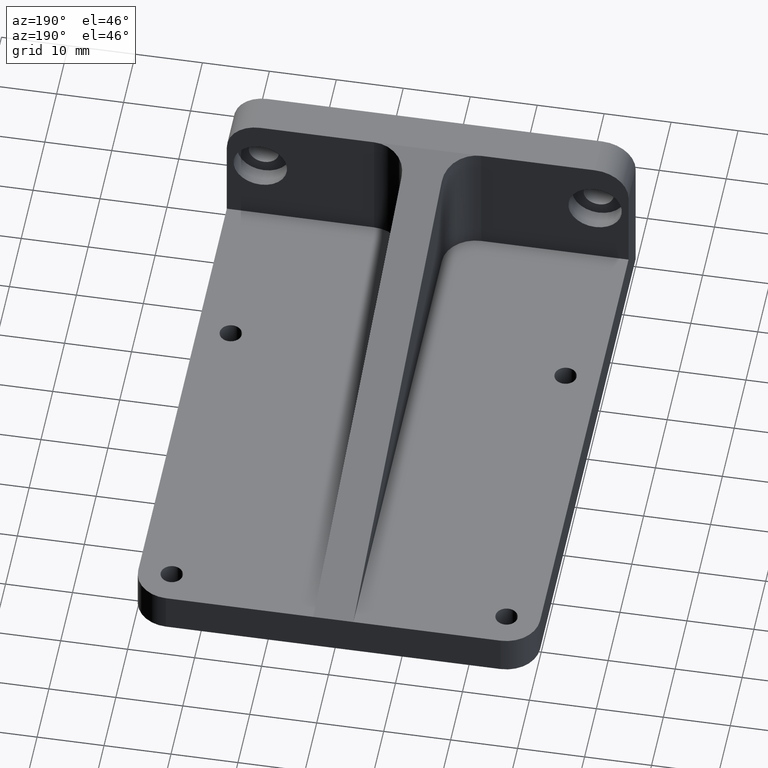
[diagram: clean part render]
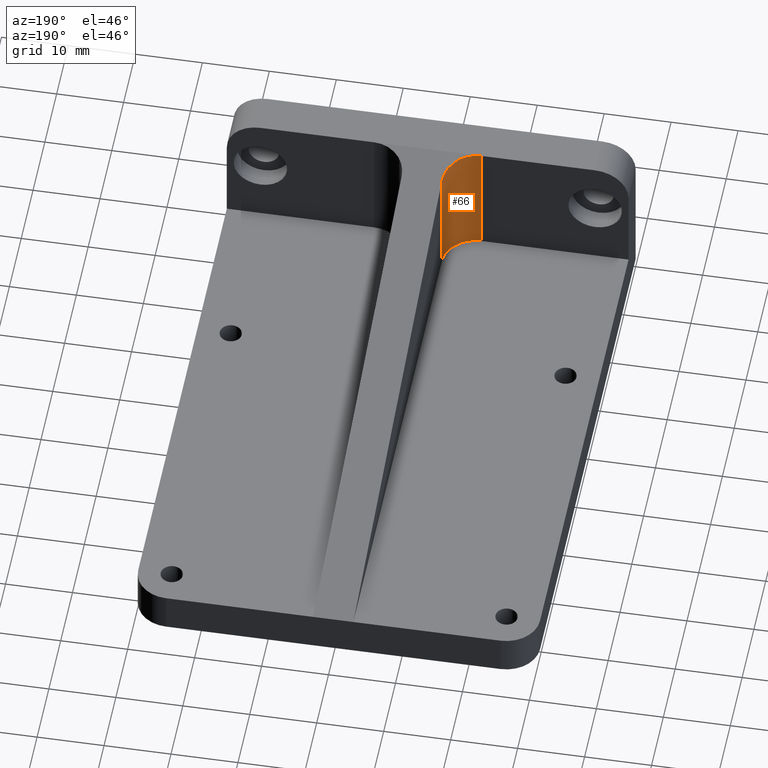
[diagram: same view with one face highlighted and labeled with its STEP entity id]
A machine part, auxiliary view. The second image highlights one B-rep face of the part: STEP entity #66.
In plain terms, the highlighted cylindrical surface (edge-blend (fillet) strip) has radius 5 mm, axis along (0, 0, -1).
Its self-contained STEP definition (entity closure, byte-faithful):
#3 = FACE_OUTER_BOUND ( 'NONE', #1244, .T. ) ;
#66 = ADVANCED_FACE ( 'NONE', ( #3 ), #106, .F. ) ;
#75 = EDGE_CURVE ( 'NONE', #1121, #847, #673, .T. ) ;
#95 = DIRECTION ( 'NONE',  ( -1.000000000000000000, 0.0000000000000000000, 0.0000000000000000000 ) ) ;
#106 = CYLINDRICAL_SURFACE ( 'NONE', #1210, 4.999999999999999112 ) ;
#136 = EDGE_CURVE ( 'NONE', #980, #1121, #508, .T. ) ;
#144 = CARTESIAN_POINT ( 'NONE',  ( -7.999999999999992895, 5.999999999999996447, 24.00000000000000000 ) ) ;
#157 = CARTESIAN_POINT ( 'NONE',  ( -3.000000000000007550, 8.071067811865454189, 23.53400974233028364 ) ) ;
#201 = AXIS2_PLACEMENT_3D ( 'NONE', #205, #870, #414 ) ;
#205 = CARTESIAN_POINT ( 'NONE',  ( -7.999999999999991118, 10.99999999999999645, 6.000000000000005329 ) ) ;
#365 = CARTESIAN_POINT ( 'NONE',  ( -7.999999999999992895, 5.999999999999996447, 24.00000000000000000 ) ) ;
#388 = CARTESIAN_POINT ( 'NONE',  ( -7.999999999999991118, 10.99999999999999645, -84.43340571124680594 ) ) ;
#403 = CARTESIAN_POINT ( 'NONE',  ( -7.999999999999991118, 5.999999999999996447, 6.000000000000005329 ) ) ;
#414 = DIRECTION ( 'NONE',  ( 1.000000000000000000, 0.0000000000000000000, 0.0000000000000000000 ) ) ;
#442 = CARTESIAN_POINT ( 'NONE',  ( -2.999999999999993339, 10.99999999999996803, 22.87500000000000711 ) ) ;
#459 = ORIENTED_EDGE ( 'NONE', *, *, #136, .F. ) ;
#476 = LINE ( 'NONE', #403, #741 ) ;
#494 = DIRECTION ( 'NONE',  ( -0.0000000000000000000, 0.0000000000000000000, 1.000000000000000000 ) ) ;
#508 = CIRCLE ( 'NONE', #201, 5.000000000000000000 ) ;
#662 = ORIENTED_EDGE ( 'NONE', *, *, #1073, .F. ) ;
#673 = LINE ( 'NONE', #850, #881 ) ;
#708 = VERTEX_POINT ( 'NONE', #365 ) ;
#714 = CARTESIAN_POINT ( 'NONE',  ( -7.999999999999992895, 5.999999999999996447, 6.000000000000005329 ) ) ;
#741 = VECTOR ( 'NONE', #780, 1000.000000000000000 ) ;
#780 = DIRECTION ( 'NONE',  ( -0.0000000000000000000, -0.0000000000000000000, -1.000000000000000000 ) ) ;
#847 = VERTEX_POINT ( 'NONE', #1125 ) ;
#850 = CARTESIAN_POINT ( 'NONE',  ( -2.999999999999990674, 10.99999999999999822, 23.99999999999999289 ) ) ;
#870 = DIRECTION ( 'NONE',  ( 0.0000000000000000000, 0.0000000000000000000, 1.000000000000000000 ) ) ;
#881 = VECTOR ( 'NONE', #494, 1000.000000000000000 ) ;
#980 = VERTEX_POINT ( 'NONE', #714 ) ;
#1037 = DIRECTION ( 'NONE',  ( 0.0000000000000000000, 0.0000000000000000000, -1.000000000000000000 ) ) ;
#1073 = EDGE_CURVE ( 'NONE', #847, #708, #1080, .T. ) ;
#1080 =( BOUNDED_CURVE ( )  B_SPLINE_CURVE ( 3, ( #442, #157, #1110, #144 ),
 .UNSPECIFIED., .F., .F. ) 
 B_SPLINE_CURVE_WITH_KNOTS ( ( 4, 4 ),
 ( 1.570796326794901887, 3.141592653589793560 ),
 .UNSPECIFIED. ) 
 CURVE ( )  GEOMETRIC_REPRESENTATION_ITEM ( )  RATIONAL_B_SPLINE_CURVE ( ( 1.000000000000000000, 0.8047378541243661587, 0.8047378541243661587, 1.000000000000000000 ) ) 
 REPRESENTATION_ITEM ( '' )  );
#1082 = ORIENTED_EDGE ( 'NONE', *, *, #75, .F. ) ;
#1110 = CARTESIAN_POINT ( 'NONE',  ( -5.071067811865480834, 5.999999999999993783, 24.00000000000000711 ) ) ;
#1121 = VERTEX_POINT ( 'NONE', #1145 ) ;
#1125 = CARTESIAN_POINT ( 'NONE',  ( -2.999999999999993339, 10.99999999999996803, 22.87500000000000711 ) ) ;
#1145 = CARTESIAN_POINT ( 'NONE',  ( -2.999999999999990674, 10.99999999999999822, 6.000000000000005329 ) ) ;
#1187 = EDGE_CURVE ( 'NONE', #708, #980, #476, .T. ) ;
#1210 = AXIS2_PLACEMENT_3D ( 'NONE', #388, #1037, #95 ) ;
#1233 = ORIENTED_EDGE ( 'NONE', *, *, #1187, .F. ) ;
#1244 = EDGE_LOOP ( 'NONE', ( #459, #1233, #662, #1082 ) ) ;